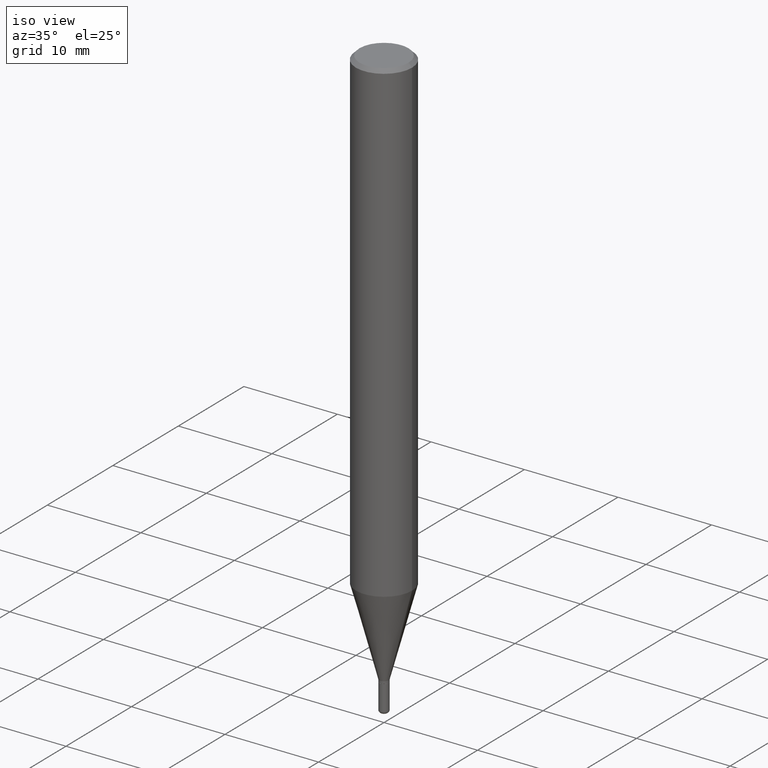
[diagram: clean part render]
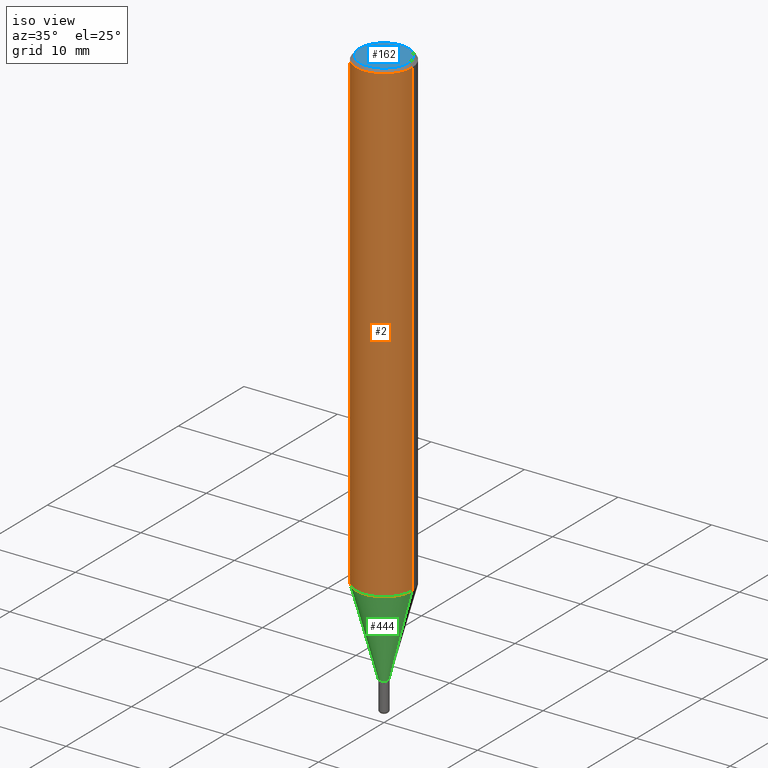
[diagram: same view with three faces highlighted in distinct colors, each labeled with its STEP entity id]
A machine part, iso view with three faces highlighted in distinct colors.
Their STEP definitions:

[orange] entity #2 — the highlighted cylindrical surface (edge-blend (fillet) strip) has radius 2.9997 mm, axis along (-0, 0, 1).
#2 = ADVANCED_FACE ( 'NONE', ( #285 ), #448, .T. ) ;
#28 = ORIENTED_EDGE ( 'NONE', *, *, #515, .F. ) ;
#63 = CARTESIAN_POINT ( 'NONE',  ( -0.1180999999999999966, -2.686662453997805181E-15, -0.01499999999999995781 ) ) ;
#66 = CARTESIAN_POINT ( 'NONE',  ( 0.1180999999999999966, -8.246878922347480654E-16, 5.758764772215000440E-30 ) ) ;
#73 = ORIENTED_EDGE ( 'NONE', *, *, #469, .F. ) ;
#79 = DIRECTION ( 'NONE',  ( 1.000000000000000000, -6.982962677686266711E-15, 0.000000000000000000 ) ) ;
#87 = AXIS2_PLACEMENT_3D ( 'NONE', #398, #311, #79 ) ;
#88 = DIRECTION ( 'NONE',  ( -2.445468806185136597E-29, 3.491481338843145583E-15, 1.000000000000000000 ) ) ;
#95 = LINE ( 'NONE', #302, #403 ) ;
#100 = VERTEX_POINT ( 'NONE', #63 ) ;
#127 = VERTEX_POINT ( 'NONE', #384 ) ;
#128 = VERTEX_POINT ( 'NONE', #425 ) ;
#134 = CIRCLE ( 'NONE', #205, 0.1180999999999999966 ) ;
#184 = EDGE_LOOP ( 'NONE', ( #73, #226, #432, #28 ) ) ;
#186 = EDGE_CURVE ( 'NONE', #474, #127, #222, .T. ) ;
#205 = AXIS2_PLACEMENT_3D ( 'NONE', #238, #518, #397 ) ;
#222 = LINE ( 'NONE', #66, #363 ) ;
#226 = ORIENTED_EDGE ( 'NONE', *, *, #276, .T. ) ;
#227 = CARTESIAN_POINT ( 'NONE',  ( 0.1180999999999999966, -7.823942522013067545E-15, -2.004666200535222487 ) ) ;
#238 = CARTESIAN_POINT ( 'NONE',  ( 4.902348660222563893E-29, -6.999254629778320071E-15, -2.004666200535222487 ) ) ;
#245 = DIRECTION ( 'NONE',  ( 1.000000000000000000, -6.982962677686266711E-15, 4.876176775795936353E-29 ) ) ;
#252 = DIRECTION ( 'NONE',  ( -2.445468806185136877E-29, 3.491481338843145188E-15, 1.000000000000000000 ) ) ;
#276 = EDGE_CURVE ( 'NONE', #128, #474, #134, .T. ) ;
#285 = FACE_OUTER_BOUND ( 'NONE', #184, .T. ) ;
#302 = CARTESIAN_POINT ( 'NONE',  ( -0.1180999999999999966, 8.391509709326782957E-16, -5.809262341591043784E-30 ) ) ;
#311 = DIRECTION ( 'NONE',  ( -2.445468806185136597E-29, 3.491481338843145583E-15, 1.000000000000000000 ) ) ;
#313 = CIRCLE ( 'NONE', #87, 0.1180999999999999966 ) ;
#362 = AXIS2_PLACEMENT_3D ( 'NONE', #493, #88, #245 ) ;
#363 = VECTOR ( 'NONE', #252, 39.37007874015748143 ) ;
#384 = CARTESIAN_POINT ( 'NONE',  ( 0.1180999999999999966, -8.770601123173951446E-16, -0.01499999999999995781 ) ) ;
#397 = DIRECTION ( 'NONE',  ( 1.000000000000000000, -6.982962677686265133E-15, 0.000000000000000000 ) ) ;
#398 = CARTESIAN_POINT ( 'NONE',  ( 3.668203209277694140E-31, -5.237222008264703607E-17, -0.01499999999999995781 ) ) ;
#403 = VECTOR ( 'NONE', #465, 39.37007874015748143 ) ;
#425 = CARTESIAN_POINT ( 'NONE',  ( -0.1180999999999999966, -6.160103658845641874E-15, -2.004666200535222487 ) ) ;
#432 = ORIENTED_EDGE ( 'NONE', *, *, #186, .T. ) ;
#448 = CYLINDRICAL_SURFACE ( 'NONE', #362, 0.1180999999999999966 ) ;
#465 = DIRECTION ( 'NONE',  ( -2.445468806185136877E-29, 3.491481338843145188E-15, 1.000000000000000000 ) ) ;
#469 = EDGE_CURVE ( 'NONE', #128, #100, #95, .T. ) ;
#474 = VERTEX_POINT ( 'NONE', #227 ) ;
#493 = CARTESIAN_POINT ( 'NONE',  ( 0.000000000000000000, 0.000000000000000000, 0.000000000000000000 ) ) ;
#515 = EDGE_CURVE ( 'NONE', #100, #127, #313, .T. ) ;
#518 = DIRECTION ( 'NONE',  ( -2.445468806185136597E-29, 3.491481338843145583E-15, 1.000000000000000000 ) ) ;

[blue] entity #162 — the highlighted planar face has unit normal (0, -0, -1).
#9 = EDGE_LOOP ( 'NONE', ( #111, #498 ) ) ;
#14 = DIRECTION ( 'NONE',  ( -1.000000000000000000, 6.982962677686265922E-15, -4.876176775795935793E-29 ) ) ;
#32 = DIRECTION ( 'NONE',  ( -2.445468806185136597E-29, 3.491481338843145583E-15, 1.000000000000000000 ) ) ;
#42 = EDGE_CURVE ( 'NONE', #142, #303, #482, .T. ) ;
#54 = DIRECTION ( 'NONE',  ( 2.438088387897960049E-29, -3.491481338843145188E-15, -1.000000000000000000 ) ) ;
#71 = CARTESIAN_POINT ( 'NONE',  ( -0.1031000000000000111, 7.461295621107775452E-16, -5.126375781645864005E-30 ) ) ;
#106 = PLANE ( 'NONE',  #466 ) ;
#111 = ORIENTED_EDGE ( 'NONE', *, *, #42, .T. ) ;
#142 = VERTEX_POINT ( 'NONE', #71 ) ;
#148 = CARTESIAN_POINT ( 'NONE',  ( 0.000000000000000000, 0.000000000000000000, 0.000000000000000000 ) ) ;
#150 = AXIS2_PLACEMENT_3D ( 'NONE', #379, #32, #423 ) ;
#162 = ADVANCED_FACE ( 'NONE', ( #168 ), #106, .F. ) ;
#168 = FACE_OUTER_BOUND ( 'NONE', #9, .T. ) ;
#207 = AXIS2_PLACEMENT_3D ( 'NONE', #148, #513, #231 ) ;
#231 = DIRECTION ( 'NONE',  ( 1.000000000000000000, -6.982962677686265922E-15, 4.876176775795935232E-29 ) ) ;
#303 = VERTEX_POINT ( 'NONE', #361 ) ;
#335 = CARTESIAN_POINT ( 'NONE',  ( 7.199434520694541042E-16, 0.1031000000000000111, -3.599717260347282847E-16 ) ) ;
#361 = CARTESIAN_POINT ( 'NONE',  ( 0.1031000000000000111, -7.849571885948548761E-16, 5.261941714946591942E-30 ) ) ;
#379 = CARTESIAN_POINT ( 'NONE',  ( 0.000000000000000000, 0.000000000000000000, 0.000000000000000000 ) ) ;
#419 = CIRCLE ( 'NONE', #207, 0.1031000000000000111 ) ;
#423 = DIRECTION ( 'NONE',  ( 1.000000000000000000, -6.982962677686265922E-15, 4.876176775795935232E-29 ) ) ;
#466 = AXIS2_PLACEMENT_3D ( 'NONE', #335, #54, #14 ) ;
#482 = CIRCLE ( 'NONE', #150, 0.1031000000000000111 ) ;
#498 = ORIENTED_EDGE ( 'NONE', *, *, #514, .T. ) ;
#513 = DIRECTION ( 'NONE',  ( -2.445468806185136597E-29, 3.491481338843145583E-15, 1.000000000000000000 ) ) ;
#514 = EDGE_CURVE ( 'NONE', #303, #142, #419, .T. ) ;

[green] entity #444 — the highlighted conical surface has half-angle 15 deg.
#70 = ORIENTED_EDGE ( 'NONE', *, *, #434, .T. ) ;
#97 = DIRECTION ( 'NONE',  ( 1.000000000000000000, -6.982962677686288799E-15, 0.000000000000000000 ) ) ;
#128 = VERTEX_POINT ( 'NONE', #425 ) ;
#133 = DIRECTION ( 'NONE',  ( 0.2588190451025205729, 1.565188264969627490E-15, 0.9659258262890682012 ) ) ;
#134 = CIRCLE ( 'NONE', #205, 0.1180999999999999966 ) ;
#153 = AXIS2_PLACEMENT_3D ( 'NONE', #372, #257, #416 ) ;
#157 = CARTESIAN_POINT ( 'NONE',  ( 0.01969999999999997101, -8.419008952352476799E-15, -2.371900000000000119 ) ) ;
#189 = FACE_OUTER_BOUND ( 'NONE', #463, .T. ) ;
#205 = AXIS2_PLACEMENT_3D ( 'NONE', #238, #518, #397 ) ;
#218 = ORIENTED_EDGE ( 'NONE', *, *, #280, .F. ) ;
#227 = CARTESIAN_POINT ( 'NONE',  ( 0.1180999999999999966, -7.823942522013067545E-15, -2.004666200535222487 ) ) ;
#236 = DIRECTION ( 'NONE',  ( -0.2588190451025205729, 5.211531920934544731E-15, 0.9659258262890682012 ) ) ;
#238 = CARTESIAN_POINT ( 'NONE',  ( 4.902348660222563893E-29, -6.999254629778320071E-15, -2.004666200535222487 ) ) ;
#256 = ORIENTED_EDGE ( 'NONE', *, *, #337, .T. ) ;
#257 = DIRECTION ( 'NONE',  ( -2.445468806185136597E-29, 3.491481338843145583E-15, 1.000000000000000000 ) ) ;
#276 = EDGE_CURVE ( 'NONE', #128, #474, #134, .T. ) ;
#280 = EDGE_CURVE ( 'NONE', #368, #128, #441, .T. ) ;
#287 = CARTESIAN_POINT ( 'NONE',  ( 0.01969999999999997101, -8.419008952352476799E-15, -2.371900000000000119 ) ) ;
#295 = CARTESIAN_POINT ( 'NONE',  ( 5.800407461390526066E-29, -8.281444587602057585E-15, -2.371900000000000119 ) ) ;
#320 = CARTESIAN_POINT ( 'NONE',  ( -0.01969999999999997101, -8.141467668657319065E-15, -2.371900000000000119 ) ) ;
#323 = VECTOR ( 'NONE', #236, 39.37007874015748854 ) ;
#330 = VERTEX_POINT ( 'NONE', #157 ) ;
#337 = EDGE_CURVE ( 'NONE', #330, #474, #370, .T. ) ;
#366 = CIRCLE ( 'NONE', #153, 0.01969999999999997101 ) ;
#368 = VERTEX_POINT ( 'NONE', #413 ) ;
#370 = LINE ( 'NONE', #287, #431 ) ;
#372 = CARTESIAN_POINT ( 'NONE',  ( 5.800407461390526066E-29, -8.281444587602057585E-15, -2.371900000000000119 ) ) ;
#397 = DIRECTION ( 'NONE',  ( 1.000000000000000000, -6.982962677686265133E-15, 0.000000000000000000 ) ) ;
#413 = CARTESIAN_POINT ( 'NONE',  ( -0.01969999999999997101, -7.150785663751480469E-15, -2.371900000000000119 ) ) ;
#416 = DIRECTION ( 'NONE',  ( 1.000000000000000000, -6.982962677686288799E-15, 0.000000000000000000 ) ) ;
#425 = CARTESIAN_POINT ( 'NONE',  ( -0.1180999999999999966, -6.160103658845641874E-15, -2.004666200535222487 ) ) ;
#431 = VECTOR ( 'NONE', #133, 39.37007874015748854 ) ;
#434 = EDGE_CURVE ( 'NONE', #368, #330, #366, .T. ) ;
#440 = AXIS2_PLACEMENT_3D ( 'NONE', #295, #459, #97 ) ;
#441 = LINE ( 'NONE', #320, #323 ) ;
#444 = ADVANCED_FACE ( 'NONE', ( #189 ), #447, .T. ) ;
#447 = CONICAL_SURFACE ( 'NONE', #440, 0.01969999999999997101, 0.2617993877991492968 ) ;
#459 = DIRECTION ( 'NONE',  ( -2.445468806185136597E-29, 3.491481338843145583E-15, 1.000000000000000000 ) ) ;
#460 = ORIENTED_EDGE ( 'NONE', *, *, #276, .F. ) ;
#463 = EDGE_LOOP ( 'NONE', ( #218, #70, #256, #460 ) ) ;
#474 = VERTEX_POINT ( 'NONE', #227 ) ;
#518 = DIRECTION ( 'NONE',  ( -2.445468806185136597E-29, 3.491481338843145583E-15, 1.000000000000000000 ) ) ;